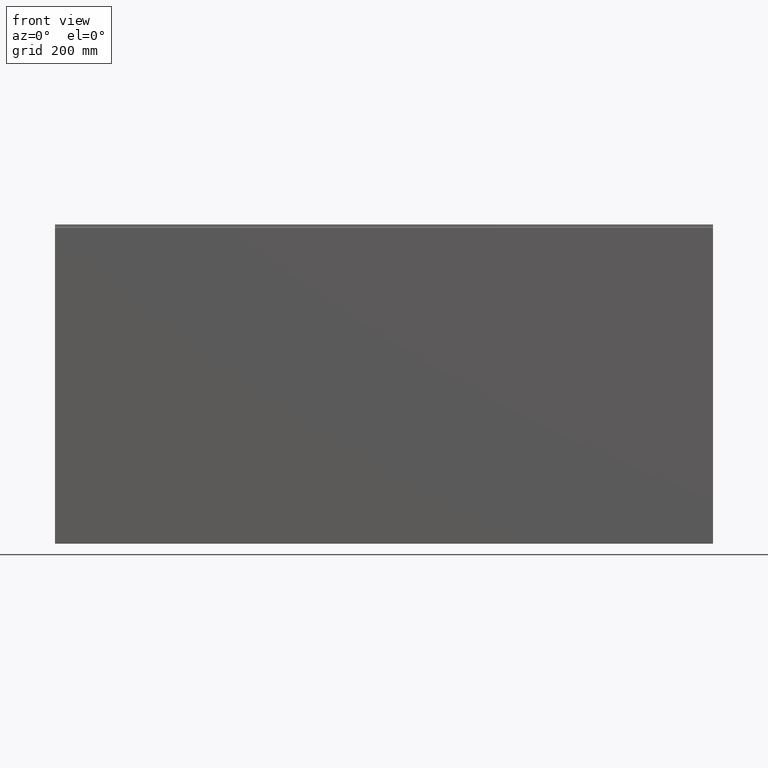
[diagram: clean part render]
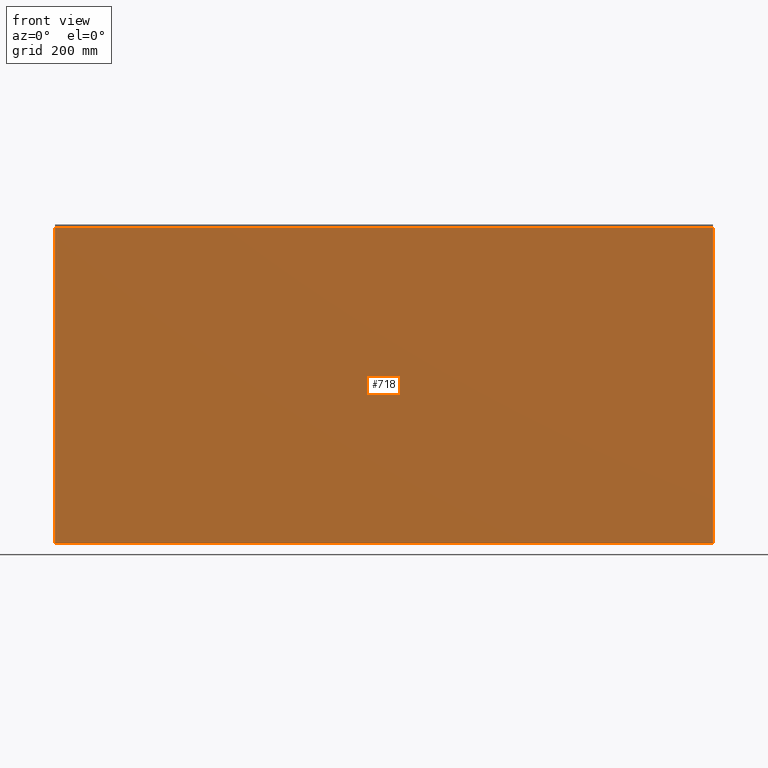
[diagram: same view with one face highlighted and labeled with its STEP entity id]
A machine part, front view. The second image highlights one B-rep face of the part: STEP entity #718.
In plain terms, the highlighted planar face has unit normal (0, 1, 0).
Its self-contained STEP definition (entity closure, byte-faithful):
#162 = VECTOR ( 'NONE', #1336, 1000.000000000000000 ) ;
#186 = LINE ( 'NONE', #1025, #2122 ) ;
#193 = CARTESIAN_POINT ( 'NONE',  ( 1199.999999999999773, -25.00000000000000000, -579.9999999999998863 ) ) ;
#238 = AXIS2_PLACEMENT_3D ( 'NONE', #1852, #628, #1257 ) ;
#327 = EDGE_CURVE ( 'NONE', #1982, #583, #186, .T. ) ;
#583 = VERTEX_POINT ( 'NONE', #2196 ) ;
#628 = DIRECTION ( 'NONE',  ( 0.000000000000000000, 1.000000000000000000, 0.000000000000000000 ) ) ;
#718 = ADVANCED_FACE ( 'NONE', ( #1219 ), #2465, .F. ) ;
#754 = CARTESIAN_POINT ( 'NONE',  ( 1199.999999999999773, -25.00000000000000000, 573.0000000000000000 ) ) ;
#765 = LINE ( 'NONE', #754, #1162 ) ;
#773 = LINE ( 'NONE', #2235, #162 ) ;
#1019 = EDGE_CURVE ( 'NONE', #1472, #1982, #765, .T. ) ;
#1025 = CARTESIAN_POINT ( 'NONE',  ( 1199.999999999999773, -25.00000000000000000, -579.9999999999998863 ) ) ;
#1162 = VECTOR ( 'NONE', #2202, 1000.000000000000000 ) ;
#1219 = FACE_OUTER_BOUND ( 'NONE', #1352, .T. ) ;
#1257 = DIRECTION ( 'NONE',  ( 0.000000000000000000, 0.000000000000000000, -1.000000000000000000 ) ) ;
#1264 = ORIENTED_EDGE ( 'NONE', *, *, #2149, .T. ) ;
#1336 = DIRECTION ( 'NONE',  ( 0.000000000000000000, 0.000000000000000000, 1.000000000000000000 ) ) ;
#1352 = EDGE_LOOP ( 'NONE', ( #1621, #2073, #2659, #1264 ) ) ;
#1472 = VERTEX_POINT ( 'NONE', #1990 ) ;
#1621 = ORIENTED_EDGE ( 'NONE', *, *, #2316, .F. ) ;
#1786 = VECTOR ( 'NONE', #2147, 1000.000000000000000 ) ;
#1852 = CARTESIAN_POINT ( 'NONE',  ( 0.000000000000000000, -25.00000000000000000, 0.000000000000000000 ) ) ;
#1931 = CARTESIAN_POINT ( 'NONE',  ( 4825.050751492372910, -25.00000000000015277, 570.0000000000001137 ) ) ;
#1982 = VERTEX_POINT ( 'NONE', #193 ) ;
#1990 = CARTESIAN_POINT ( 'NONE',  ( 1199.999999999999773, -25.00000000000015277, 570.0000000000001137 ) ) ;
#2073 = ORIENTED_EDGE ( 'NONE', *, *, #327, .F. ) ;
#2122 = VECTOR ( 'NONE', #2687, 1000.000000000000000 ) ;
#2147 = DIRECTION ( 'NONE',  ( -1.000000000000000000, 0.000000000000000000, 0.000000000000000000 ) ) ;
#2149 = EDGE_CURVE ( 'NONE', #1472, #2607, #2526, .T. ) ;
#2196 = CARTESIAN_POINT ( 'NONE',  ( -1200.000000000000227, -25.00000000000000000, -579.9999999999998863 ) ) ;
#2202 = DIRECTION ( 'NONE',  ( 0.000000000000000000, 0.000000000000000000, -1.000000000000000000 ) ) ;
#2235 = CARTESIAN_POINT ( 'NONE',  ( -1200.000000000000227, -25.00000000000000000, 573.0000000000000000 ) ) ;
#2316 = EDGE_CURVE ( 'NONE', #583, #2607, #773, .T. ) ;
#2465 = PLANE ( 'NONE',  #238 ) ;
#2526 = LINE ( 'NONE', #1931, #1786 ) ;
#2607 = VERTEX_POINT ( 'NONE', #2640 ) ;
#2640 = CARTESIAN_POINT ( 'NONE',  ( -1200.000000000000227, -25.00000000000015277, 570.0000000000001137 ) ) ;
#2659 = ORIENTED_EDGE ( 'NONE', *, *, #1019, .F. ) ;
#2687 = DIRECTION ( 'NONE',  ( -1.000000000000000000, -0.000000000000000000, -0.000000000000000000 ) ) ;